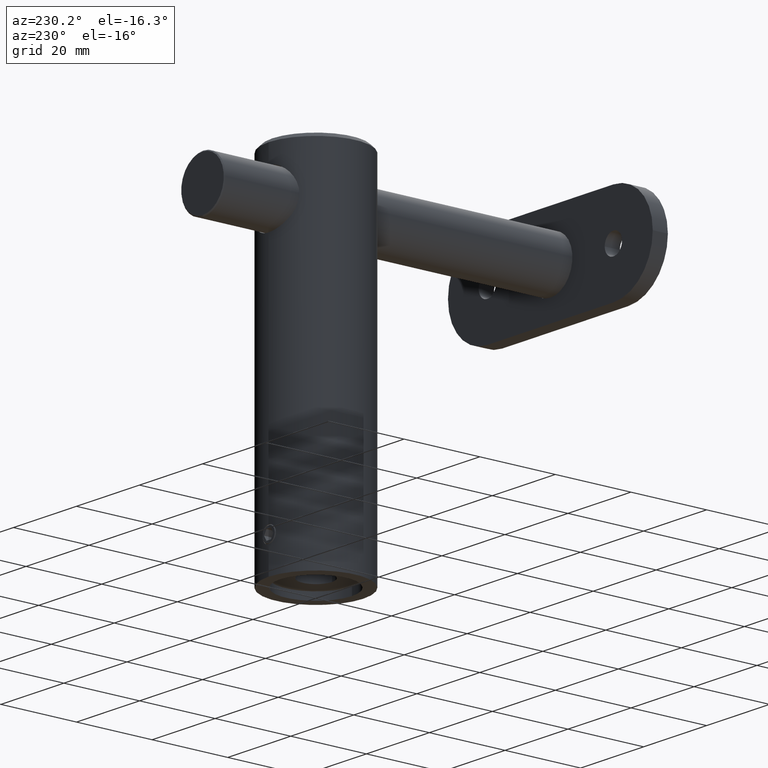
[diagram: clean part render]
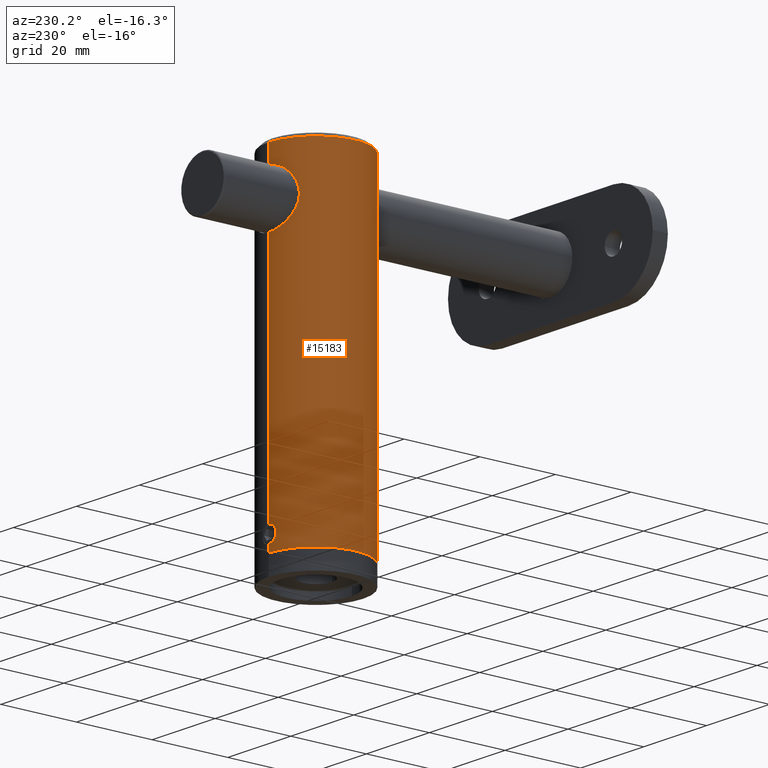
[diagram: same view with one face highlighted and labeled with its STEP entity id]
A machine part, auxiliary view. The second image highlights one B-rep face of the part: STEP entity #15183.
In plain terms, the highlighted cylindrical surface (partial cylindrical patch) has radius 12.5 mm, axis along (0, 0, -1).
Its self-contained STEP definition (entity closure, byte-faithful):
#156 = VERTEX_POINT ( 'NONE', #1703 ) ;
#200 = VERTEX_POINT ( 'NONE', #9526 ) ;
#537 = CARTESIAN_POINT ( 'NONE',  ( -1.059040836926604667, 12.45762628977003494, 5.833907784815527187 ) ) ;
#578 = VECTOR ( 'NONE', #13512, 1000.000000000000000 ) ;
#688 = CARTESIAN_POINT ( 'NONE',  ( -9.798441303750187635E-23, 12.50000000000000355, 1.900000000000005684 ) ) ;
#769 = CARTESIAN_POINT ( 'NONE',  ( -6.357972462635662403, 10.76299649604914954, 78.16845701976458827 ) ) ;
#837 = CARTESIAN_POINT ( 'NONE',  ( -0.9511822130778539996, 12.47241159761730600, 67.94825715557604440 ) ) ;
#904 = CARTESIAN_POINT ( 'NONE',  ( -2.327268730588588852, 12.28355408712934960, 81.71186112651896849 ) ) ;
#967 = CARTESIAN_POINT ( 'NONE',  ( -6.853982002503376414, 10.45369377733144312, 76.86763025503729807 ) ) ;
#983 = EDGE_CURVE ( 'NONE', #18032, #200, #6784, .T. ) ;
#984 = CARTESIAN_POINT ( 'NONE',  ( 1.530808498934191324E-15, -12.49999999999999289, -1.372557338457839692E-15 ) ) ;
#1231 = EDGE_CURVE ( 'NONE', #19417, #17419, #19315, .T. ) ;
#1251 = CARTESIAN_POINT ( 'NONE',  ( -0.4809610958689493065, -12.50000000000000711, 67.89999999999999147 ) ) ;
#1319 = CARTESIAN_POINT ( 'NONE',  ( -6.454712516760552354, -10.70503448327142237, 72.03349485711554223 ) ) ;
#1455 = CARTESIAN_POINT ( 'NONE',  ( -6.136548808116675247, -10.89076193942645965, 71.42150636865642355 ) ) ;
#1703 = CARTESIAN_POINT ( 'NONE',  ( 6.970107993329720685E-17, 12.50000000000000355, 6.099999999999998757 ) ) ;
#1759 = CARTESIAN_POINT ( 'NONE',  ( -0.2743003893079644095, 12.50000000000000355, 1.900000000000005462 ) ) ;
#1875 = CARTESIAN_POINT ( 'NONE',  ( -1.580836478937785561, 12.40001885819545357, 2.610867943919020107 ) ) ;
#2175 = CARTESIAN_POINT ( 'NONE',  ( -1.582460249035301691, 12.39980942031197131, 5.387258285073711406 ) ) ;
#2298 = CARTESIAN_POINT ( 'NONE',  ( -0.1389824923851663285, 12.50000000000000355, 6.099999999999999645 ) ) ;
#2394 = CARTESIAN_POINT ( 'NONE',  ( -4.699254457469035806, 11.58459427111668205, 80.32723125532280051 ) ) ;
#2435 = VERTEX_POINT ( 'NONE', #688 ) ;
#2531 = B_SPLINE_CURVE_WITH_KNOTS ( 'NONE', 3,
 ( #12267, #1759, #3297, #14010, #4831, #6165, #18457, #1875, #5408, #15035, #12304, #12375, #17577, #13012, #17641, #3772, #5317, #16034, #5261, #15966, #19192, #17378, #2175, #6757, #537, #11528, #3637, #3701, #2298, #14486 ),
 .UNSPECIFIED., .F., .F.,
 ( 4, 2, 2, 2, 2, 2, 2, 2, 2, 2, 2, 2, 2, 2, 4 ),
 ( 0.006577226265834324424, 0.007399174158320379058, 0.007810148104563405941, 0.008221122050806432824, 0.008632095997049459707, 0.009043069943292486590, 0.009454043889535513473, 0.009865017835778542091, 0.01027599178202156897, 0.01068696572826459586, 0.01109793967450762274, 0.01150891362075065136, 0.01233086151323670512, 0.01274183545947973201, 0.01315280940572275889 ),
 .UNSPECIFIED. ) ;
#2594 = CARTESIAN_POINT ( 'NONE',  ( -1.189197617727922651, 12.44547036346077462, 82.00366006475732661 ) ) ;
#2670 = CARTESIAN_POINT ( 'NONE',  ( -2.330508779459667501, -12.28868335539655376, 81.72272208563961726 ) ) ;
#2703 = DIRECTION ( 'NONE',  ( 0.000000000000000000, 1.000000000000000000, 0.000000000000000000 ) ) ;
#2867 = CARTESIAN_POINT ( 'NONE',  ( -6.016811922509472055, -10.95760019053422774, 71.22370518382081173 ) ) ;
#3297 = CARTESIAN_POINT ( 'NONE',  ( -0.5510555997337233114, 12.49041604070636780, 1.955202883481008902 ) ) ;
#3637 = CARTESIAN_POINT ( 'NONE',  ( -0.5474908082748963789, 12.48874150837816899, 6.032087653072125022 ) ) ;
#3701 = CARTESIAN_POINT ( 'NONE',  ( -0.2762664775608889012, 12.49768328457756006, 6.086337280568454133 ) ) ;
#3772 = CARTESIAN_POINT ( 'NONE',  ( -2.100083223394554111, 12.32232325748718615, 4.137471484870282268 ) ) ;
#3785 = CARTESIAN_POINT ( 'NONE',  ( 0.000000000000000000, 2.723909758835963716E-15, 0.000000000000000000 ) ) ;
#3926 = CARTESIAN_POINT ( 'NONE',  ( -5.628902018887846026, 11.16205403663977691, 70.66670042335572077 ) ) ;
#3997 = CARTESIAN_POINT ( 'NONE',  ( -0.9553685758214900403, 12.46569958972207814, 82.03946455910859470 ) ) ;
#4015 = CARTESIAN_POINT ( 'NONE',  ( -4.708029709747248326, -11.58475042720365344, 80.33381269667304991 ) ) ;
#4120 = CARTESIAN_POINT ( 'NONE',  ( -7.099833554373474520, 10.28797178943786861, 74.75572396004346842 ) ) ;
#4137 = CARTESIAN_POINT ( 'NONE',  ( -6.722015453373487937, -10.54080125387374345, 77.33161824979872279 ) ) ;
#4334 = CARTESIAN_POINT ( 'NONE',  ( -3.186329035902472295, -12.09508519001900240, 68.63805128578243853 ) ) ;
#4484 = CARTESIAN_POINT ( 'NONE',  ( 1.530808498934021719E-15, -12.50000000000000711, 67.90000000000000568 ) ) ;
#4539 = CARTESIAN_POINT ( 'NONE',  ( -6.634052515645173287, -10.59483006856256537, 72.45976110248518864 ) ) ;
#4653 = ORIENTED_EDGE ( 'NONE', *, *, #10328, .F. ) ;
#4831 = CARTESIAN_POINT ( 'NONE',  ( -1.052645575539821632, 12.45612933409647205, 2.177666326171957323 ) ) ;
#5048 = CARTESIAN_POINT ( 'NONE',  ( 0.000000000000000000, -6.829089316830601455E-15, 87.00000000000000000 ) ) ;
#5134 = DIRECTION ( 'NONE',  ( 0.000000000000000000, 1.000000000000000000, 1.098045870766272064E-16 ) ) ;
#5261 = CARTESIAN_POINT ( 'NONE',  ( -1.992762697854684184, 12.34024839959371889, 4.676597208822471430 ) ) ;
#5317 = CARTESIAN_POINT ( 'NONE',  ( -2.086551808546025732, 12.32465138950227512, 4.274013215971939061 ) ) ;
#5328 = ORIENTED_EDGE ( 'NONE', *, *, #19910, .T. ) ;
#5408 = CARTESIAN_POINT ( 'NONE',  ( -1.669446844424485432, 12.38825472392713323, 2.718715876743982740 ) ) ;
#5478 = CARTESIAN_POINT ( 'NONE',  ( -5.637531711305973303, 11.16027666235574323, 79.34016184945231487 ) ) ;
#5534 = CARTESIAN_POINT ( 'NONE',  ( -0.2397798003476031004, 12.50000000000000000, 82.10000000000002274 ) ) ;
#5601 = CARTESIAN_POINT ( 'NONE',  ( -6.019886174600849849, 10.95590503741819077, 78.77136084374127734 ) ) ;
#5622 = CARTESIAN_POINT ( 'NONE',  ( -3.592029824636711055, -11.97955674781281488, 81.14166018535316027 ) ) ;
#5813 = CARTESIAN_POINT ( 'NONE',  ( -4.703273353215213781, -11.58671775153815986, 69.66188594729268857 ) ) ;
#5888 = CARTESIAN_POINT ( 'NONE',  ( 1.530808498934191719E-15, -12.50000000000000178, 24.80688495222045375 ) ) ;
#5997 = CARTESIAN_POINT ( 'NONE',  ( -6.355184909898128787, -10.76464359171548146, 71.82596901323131533 ) ) ;
#6165 = CARTESIAN_POINT ( 'NONE',  ( -1.281603546142740635, 12.43465773738692626, 2.330732173380938743 ) ) ;
#6179 = EDGE_CURVE ( 'NONE', #2435, #11020, #11755, .T. ) ;
#6467 = DIRECTION ( 'NONE',  ( -0.000000000000000000, 1.098045870766271941E-16, -1.000000000000000000 ) ) ;
#6757 = CARTESIAN_POINT ( 'NONE',  ( -1.292831960822521831, 12.43448438498407604, 5.677274419469252820 ) ) ;
#6784 = LINE ( 'NONE', #15652, #16177 ) ;
#6894 = CARTESIAN_POINT ( 'NONE',  ( 1.479114197289397135E-28, 12.49999999999999645, 67.90000000000000568 ) ) ;
#6903 = EDGE_CURVE ( 'NONE', #17419, #11020, #19789, .T. ) ;
#6911 = CARTESIAN_POINT ( 'NONE',  ( -5.339170464550233142, 11.30350596078846870, 70.31435362947014767 ) ) ;
#6965 = CARTESIAN_POINT ( 'NONE',  ( 1.479114197289397135E-28, 12.49999999999999645, 67.90000000000000568 ) ) ;
#6971 = B_SPLINE_CURVE_WITH_KNOTS ( 'NONE', 3,
 ( #6965, #16056, #837, #16113, #7034, #11557, #17738, #9949, #17801, #8602, #6911, #3926, #10082, #16313, #17603, #10150, #14770, #8537, #19158, #11493, #4120, #8663, #14641, #19420, #967, #8463, #16181, #13041, #769, #14704, #5601, #5478, #13178, #19219, #2394, #7108, #17872, #19281, #11695, #13243, #904, #11628, #10219, #2594, #3997, #11756, #5534, #7170 ),
 .UNSPECIFIED., .F., .F.,
 ( 4, 2, 2, 2, 2, 2, 2, 2, 2, 2, 2, 2, 2, 2, 2, 2, 2, 2, 2, 2, 2, 2, 2, 4 ),
 ( 0.02270891682282252799, 0.02412525192292018852, 0.02554158702301784559, 0.02695792212311550612, 0.02837425722321316318, 0.02908242477326199171, 0.02979059232331082024, 0.03120692742340847731, 0.03262326252350612743, 0.03333143007355495596, 0.03403959762360378449, 0.03545593272370139992, 0.03616410027375020764, 0.03687226782379901535, 0.03758043537384781613, 0.03828860292389662384, 0.03970493802399420458, 0.04041310557404299841, 0.04112127312409179225, 0.04253760822418940074, 0.04324577577423820152, 0.04395394332428700923, 0.04466211087433581695, 0.04537027842438461772 ),
 .UNSPECIFIED. ) ;
#7034 = CARTESIAN_POINT ( 'NONE',  ( -2.330455522349846653, 12.28868556496928122, 68.27727600612421099 ) ) ;
#7054 = CARTESIAN_POINT ( 'NONE',  ( -6.364631587517303402, -10.76036465851576907, 78.18015725607450861 ) ) ;
#7108 = CARTESIAN_POINT ( 'NONE',  ( -4.346392963122591269, 11.72154789661119878, 80.61883026206068337 ) ) ;
#7170 = CARTESIAN_POINT ( 'NONE',  ( 1.310074275435993587E-16, 12.49999999999999467, 82.09999999999999432 ) ) ;
#7186 = CARTESIAN_POINT ( 'NONE',  ( -1.874052461373487910, -12.36744064349519334, 81.86437246242218180 ) ) ;
#7418 = DIRECTION ( 'NONE',  ( -0.000000000000000000, 1.098045870766271941E-16, -1.000000000000000000 ) ) ;
#7449 = CARTESIAN_POINT ( 'NONE',  ( -6.852873825890776871, -10.45442333798883183, 73.12823189057863260 ) ) ;
#7527 = EDGE_LOOP ( 'NONE', ( #4653, #5328, #16091, #18151, #19409, #11256, #12189, #18387, #18889, #19254 ) ) ;
#7895 = DIRECTION ( 'NONE',  ( 0.000000000000000000, -1.000000000000000000, 0.000000000000000000 ) ) ;
#8463 = CARTESIAN_POINT ( 'NONE',  ( -6.715641276056542708, 10.54309940824726688, 77.31630617827102014 ) ) ;
#8537 = CARTESIAN_POINT ( 'NONE',  ( -7.003725121456042757, 10.35379304955138124, 73.81127548781321934 ) ) ;
#8602 = CARTESIAN_POINT ( 'NONE',  ( -5.186797260141185362, 11.37442896416548521, 70.14630031359379814 ) ) ;
#8616 = CARTESIAN_POINT ( 'NONE',  ( -7.051303418075907992, -10.32191336193628217, 75.95439068768591540 ) ) ;
#8663 = CARTESIAN_POINT ( 'NONE',  ( -7.100327846217661332, 10.28763066194222553, 75.47389198161975798 ) ) ;
#8736 = CARTESIAN_POINT ( 'NONE',  ( 0.000000000000000000, 12.50000000000000000, 1.372557338457839692E-15 ) ) ;
#8754 = CARTESIAN_POINT ( 'NONE',  ( -6.148078400945676592, -10.88734605281070422, 78.58038588945871084 ) ) ;
#9526 = CARTESIAN_POINT ( 'NONE',  ( 1.310074275435993587E-16, 12.49999999999999467, 82.09999999999999432 ) ) ;
#9737 = CARTESIAN_POINT ( 'NONE',  ( 0.000000000000000000, 12.49999999999999467, 87.00000000000000000 ) ) ;
#9893 = EDGE_CURVE ( 'NONE', #11556, #19417, #11911, .T. ) ;
#9949 = CARTESIAN_POINT ( 'NONE',  ( -4.357488413051599174, 11.72285358696203161, 69.37543835206956544 ) ) ;
#10006 = AXIS2_PLACEMENT_3D ( 'NONE', #11886, #7418, #2703 ) ;
#10082 = CARTESIAN_POINT ( 'NONE',  ( -5.765905370694645704, 11.09166530797232397, 70.85077256676534319 ) ) ;
#10150 = CARTESIAN_POINT ( 'NONE',  ( -6.721338987096790341, 10.54124068422388660, 72.66633231102328239 ) ) ;
#10219 = CARTESIAN_POINT ( 'NONE',  ( -1.650620416519912759, 12.39271462522872191, 81.90947881661521990 ) ) ;
#10235 = CARTESIAN_POINT ( 'NONE',  ( -4.356324323330959203, -11.72326304938613184, 80.62539833997443850 ) ) ;
#10305 = CARTESIAN_POINT ( 'NONE',  ( -6.911509236011332824, -10.41557569167955855, 73.35788736678888711 ) ) ;
#10328 = EDGE_CURVE ( 'NONE', #19500, #11556, #16492, .T. ) ;
#10503 = CARTESIAN_POINT ( 'NONE',  ( -0.9511355239451600996, -12.47236506100288445, 67.94834280267892268 ) ) ;
#10631 = CARTESIAN_POINT ( 'NONE',  ( -2.319323625872138361, -12.28506725716603754, 68.28537096905358794 ) ) ;
#10966 = EDGE_CURVE ( 'NONE', #16595, #200, #6971, .T. ) ;
#11020 = VERTEX_POINT ( 'NONE', #8736 ) ;
#11101 = AXIS2_PLACEMENT_3D ( 'NONE', #5048, #12482, #7895 ) ;
#11256 = ORIENTED_EDGE ( 'NONE', *, *, #11439, .F. ) ;
#11279 = VECTOR ( 'NONE', #12247, 1000.000000000000000 ) ;
#11379 = CARTESIAN_POINT ( 'NONE',  ( 0.000000000000000000, 12.50000000000000178, 24.80688495222045375 ) ) ;
#11439 = EDGE_CURVE ( 'NONE', #2435, #156, #2531, .T. ) ;
#11493 = CARTESIAN_POINT ( 'NONE',  ( -7.087426699821466336, 10.29656404782429746, 74.51571112368853278 ) ) ;
#11528 = CARTESIAN_POINT ( 'NONE',  ( -0.6802983101495050366, 12.48211517639016677, 5.991454373963667202 ) ) ;
#11556 = VERTEX_POINT ( 'NONE', #17456 ) ;
#11557 = CARTESIAN_POINT ( 'NONE',  ( -3.187016512190915307, 12.09486426576824591, 68.63847765149670010 ) ) ;
#11628 = CARTESIAN_POINT ( 'NONE',  ( -1.878213508060260439, 12.36018587133492552, 81.85110017035161434 ) ) ;
#11646 = CARTESIAN_POINT ( 'NONE',  ( 1.290313625304569330E-16, -12.50000000000000888, 82.09999999999999432 ) ) ;
#11695 = CARTESIAN_POINT ( 'NONE',  ( -3.195008394635605598, 12.09282248704221097, 81.35766473062257376 ) ) ;
#11755 = LINE ( 'NONE', #15185, #11279 ) ;
#11756 = CARTESIAN_POINT ( 'NONE',  ( -0.4811991486314993738, 12.49299174562365344, 82.08768211575331009 ) ) ;
#11776 = CARTESIAN_POINT ( 'NONE',  ( -5.629205280336354811, -11.16189758074911786, 79.33288889108357012 ) ) ;
#11886 = CARTESIAN_POINT ( 'NONE',  ( 0.000000000000000000, 0.000000000000000000, 24.80688495222045375 ) ) ;
#11911 = B_SPLINE_CURVE_WITH_KNOTS ( 'NONE', 3,
 ( #11646, #18025, #17757, #7186, #2670, #19300, #5622, #10235, #4015, #13195, #14720, #11776, #16271, #8754, #7054, #4137, #17820, #8616, #14855, #19375, #19495, #10305, #7449, #15173, #4539, #1319, #5997, #1455, #2867, #16724, #12043, #5813, #16535, #19891, #4334, #13592, #10631, #18085, #19689, #10503, #1251, #11986 ),
 .UNSPECIFIED., .F., .F.,
 ( 4, 2, 2, 2, 2, 2, 2, 2, 2, 2, 2, 2, 2, 2, 2, 2, 2, 2, 2, 2, 4 ),
 ( 1.250545881557408011E-19, 0.001419307301426417974, 0.002838614602852835515, 0.004257921904279252621, 0.005677229205705669295, 0.006386882856418878499, 0.007096536507132086835, 0.008515843808558505243, 0.009935151109984921916, 0.01135445841141133859, 0.01277376571283775873, 0.01348341936355096707, 0.01419307301426417714, 0.01490272666497738548, 0.01561238031569059381, 0.01703168761711697926, 0.01845099491854336471, 0.01987030221996975016, 0.02057995587068294288, 0.02128960952139613561, 0.02270891682282252105 ),
 .UNSPECIFIED. ) ;
#11986 = CARTESIAN_POINT ( 'NONE',  ( 1.530808498934021719E-15, -12.50000000000000711, 67.90000000000000568 ) ) ;
#12043 = CARTESIAN_POINT ( 'NONE',  ( -5.345048310374298950, -11.30501070537479791, 70.30460859623606495 ) ) ;
#12189 = ORIENTED_EDGE ( 'NONE', *, *, #6179, .T. ) ;
#12247 = DIRECTION ( 'NONE',  ( -0.000000000000000000, 1.098045870766271941E-16, -1.000000000000000000 ) ) ;
#12267 = CARTESIAN_POINT ( 'NONE',  ( -9.798441303750187635E-23, 12.50000000000000355, 1.900000000000005684 ) ) ;
#12290 = EDGE_CURVE ( 'NONE', #16595, #156, #15244, .T. ) ;
#12304 = CARTESIAN_POINT ( 'NONE',  ( -1.886269248244665464, 12.35697594623955275, 3.066738918888293419 ) ) ;
#12375 = CARTESIAN_POINT ( 'NONE',  ( -1.992047017919825969, 12.34036526571288306, 3.321224189597172138 ) ) ;
#12482 = DIRECTION ( 'NONE',  ( -0.000000000000000000, 1.098045870766268366E-16, -1.000000000000000000 ) ) ;
#13012 = CARTESIAN_POINT ( 'NONE',  ( -2.086126021674024500, 12.32472383621020029, 3.722835077555702643 ) ) ;
#13041 = CARTESIAN_POINT ( 'NONE',  ( -6.457309689604062264, 10.70346527864367481, 77.96083301754556771 ) ) ;
#13135 = VECTOR ( 'NONE', #14925, 1000.000000000000000 ) ;
#13178 = CARTESIAN_POINT ( 'NONE',  ( -5.350137245759822413, 11.30260226496380405, 79.68962492468297398 ) ) ;
#13195 = CARTESIAN_POINT ( 'NONE',  ( -5.187679897919512229, -11.37402628047062514, 79.85275722496859885 ) ) ;
#13243 = CARTESIAN_POINT ( 'NONE',  ( -2.549971958430652386, 12.23912789366316645, 81.63039500168852669 ) ) ;
#13353 = VECTOR ( 'NONE', #16126, 1000.000000000000000 ) ;
#13512 = DIRECTION ( 'NONE',  ( -0.000000000000000000, 1.098045870766271941E-16, -1.000000000000000000 ) ) ;
#13592 = CARTESIAN_POINT ( 'NONE',  ( -2.542285523396217606, -12.24072011514205194, 68.36667086906035706 ) ) ;
#13706 = CARTESIAN_POINT ( 'NONE',  ( 1.530808498934191719E-15, -12.50000000000000178, 24.80688495222045375 ) ) ;
#13726 = CARTESIAN_POINT ( 'NONE',  ( 1.530808498934192507E-15, -12.50000000000000888, 87.00000000000000000 ) ) ;
#14010 = CARTESIAN_POINT ( 'NONE',  ( -0.9302022205380907627, 12.46598422166855258, 2.112292869818887642 ) ) ;
#14486 = CARTESIAN_POINT ( 'NONE',  ( 6.970107993329720685E-17, 12.50000000000000355, 6.099999999999998757 ) ) ;
#14641 = CARTESIAN_POINT ( 'NONE',  ( -7.052734923715453519, 10.32092856185195195, 75.94404489671643432 ) ) ;
#14704 = CARTESIAN_POINT ( 'NONE',  ( -6.139503581357961259, 10.88909560909868901, 78.57343385222416998 ) ) ;
#14720 = CARTESIAN_POINT ( 'NONE',  ( -5.339918604441927563, -11.30314907400740942, 79.68477827955356929 ) ) ;
#14770 = CARTESIAN_POINT ( 'NONE',  ( -6.862816372559787936, 10.44818337300496047, 73.12045813888649093 ) ) ;
#14855 = CARTESIAN_POINT ( 'NONE',  ( -7.099863319915299620, -10.28795124725936816, 75.48272081303903747 ) ) ;
#14925 = DIRECTION ( 'NONE',  ( -0.000000000000000000, 1.098045870766271941E-16, -1.000000000000000000 ) ) ;
#15035 = CARTESIAN_POINT ( 'NONE',  ( -1.821665953450997799, 12.36678782163336798, 2.946304159207088880 ) ) ;
#15173 = CARTESIAN_POINT ( 'NONE',  ( -6.713868405384194382, -10.54423150536104181, 72.67849907081439653 ) ) ;
#15182 = AXIS2_PLACEMENT_3D ( 'NONE', #3785, #19144, #5134 ) ;
#15183 = ADVANCED_FACE ( 'NONE', ( #17178 ), #18152, .T. ) ;
#15185 = CARTESIAN_POINT ( 'NONE',  ( 0.000000000000000000, 12.50000000000000178, 24.80688495222045375 ) ) ;
#15244 = LINE ( 'NONE', #11379, #13353 ) ;
#15652 = CARTESIAN_POINT ( 'NONE',  ( 0.000000000000000000, 12.50000000000000178, 24.80688495222045375 ) ) ;
#15966 = CARTESIAN_POINT ( 'NONE',  ( -1.887587319264244057, 12.35677335900393103, 4.930538051398362320 ) ) ;
#16034 = CARTESIAN_POINT ( 'NONE',  ( -2.033241785620697240, 12.33355821179407208, 4.542871562600156565 ) ) ;
#16056 = CARTESIAN_POINT ( 'NONE',  ( -0.4799539051028682834, 12.49999999999999822, 67.90000000000000568 ) ) ;
#16091 = ORIENTED_EDGE ( 'NONE', *, *, #983, .T. ) ;
#16113 = CARTESIAN_POINT ( 'NONE',  ( -1.874312031601152784, 12.36740688548126954, 68.13568800573901285 ) ) ;
#16126 = DIRECTION ( 'NONE',  ( -0.000000000000000000, 1.098045870766271941E-16, -1.000000000000000000 ) ) ;
#16177 = VECTOR ( 'NONE', #6467, 1000.000000000000000 ) ;
#16181 = CARTESIAN_POINT ( 'NONE',  ( -6.636142668883750595, 10.59351820108907916, 77.53475660832805261 ) ) ;
#16271 = CARTESIAN_POINT ( 'NONE',  ( -5.766588826831744896, -11.09131400361185094, 79.14830821994482335 ) ) ;
#16313 = CARTESIAN_POINT ( 'NONE',  ( -6.146595381488635823, 10.88816703618159565, 71.41721095202193226 ) ) ;
#16492 = LINE ( 'NONE', #5888, #13135 ) ;
#16535 = CARTESIAN_POINT ( 'NONE',  ( -4.346314444032338464, -11.72684879340800812, 69.36723664936094735 ) ) ;
#16595 = VERTEX_POINT ( 'NONE', #6894 ) ;
#16724 = CARTESIAN_POINT ( 'NONE',  ( -5.633085906007541332, -11.16254692090160461, 70.65396086375709217 ) ) ;
#17178 = FACE_OUTER_BOUND ( 'NONE', #7527, .T. ) ;
#17378 = CARTESIAN_POINT ( 'NONE',  ( -1.670798748957219582, 12.38807301078725409, 5.279564379130151863 ) ) ;
#17419 = VERTEX_POINT ( 'NONE', #984 ) ;
#17456 = CARTESIAN_POINT ( 'NONE',  ( 1.290313625304569330E-16, -12.50000000000000888, 82.09999999999999432 ) ) ;
#17577 = CARTESIAN_POINT ( 'NONE',  ( -2.032484663200844199, 12.33368337160504602, 3.454336856300159297 ) ) ;
#17603 = CARTESIAN_POINT ( 'NONE',  ( -6.363243337331820904, 10.76119357562656376, 71.81699247692640142 ) ) ;
#17641 = CARTESIAN_POINT ( 'NONE',  ( -2.099916014006710352, 12.32235175367555513, 3.859997541257774945 ) ) ;
#17738 = CARTESIAN_POINT ( 'NONE',  ( -3.591928364928691053, 11.97960984808971929, 68.85822097251376306 ) ) ;
#17757 = CARTESIAN_POINT ( 'NONE',  ( -0.9512168273055808809, -12.47240342699864257, 82.05172804908774253 ) ) ;
#17801 = CARTESIAN_POINT ( 'NONE',  ( -4.707102817139632300, 11.58512768093194367, 69.66537265374722665 ) ) ;
#17820 = CARTESIAN_POINT ( 'NONE',  ( -6.863499158220037089, -10.44773442666880925, 76.87726417523569467 ) ) ;
#17872 = CARTESIAN_POINT ( 'NONE',  ( -4.163804789402314910, 11.78780696279484275, 80.75540257205885553 ) ) ;
#18025 = CARTESIAN_POINT ( 'NONE',  ( -0.4805659640073332572, -12.50000000000001066, 82.09999999999999432 ) ) ;
#18032 = VERTEX_POINT ( 'NONE', #9737 ) ;
#18085 = CARTESIAN_POINT ( 'NONE',  ( -1.869096526884923559, -12.36157828789707835, 68.14638903365944600 ) ) ;
#18151 = ORIENTED_EDGE ( 'NONE', *, *, #10966, .F. ) ;
#18152 = CYLINDRICAL_SURFACE ( 'NONE', #10006, 12.50000000000000178 ) ;
#18387 = ORIENTED_EDGE ( 'NONE', *, *, #6903, .F. ) ;
#18457 = CARTESIAN_POINT ( 'NONE',  ( -1.387160506701220042, 12.42317581721323627, 2.417433233313488916 ) ) ;
#18795 = CIRCLE ( 'NONE', #11101, 12.50000000000000178 ) ;
#18889 = ORIENTED_EDGE ( 'NONE', *, *, #1231, .F. ) ;
#19144 = DIRECTION ( 'NONE',  ( -0.000000000000000000, 1.098045870766271941E-16, -1.000000000000000000 ) ) ;
#19158 = CARTESIAN_POINT ( 'NONE',  ( -7.039363743819929020, 10.32948239257338408, 74.04422229401671984 ) ) ;
#19192 = CARTESIAN_POINT ( 'NONE',  ( -1.823189292361671265, 12.36656387944243640, 5.051110966584160700 ) ) ;
#19219 = CARTESIAN_POINT ( 'NONE',  ( -4.868944799639089993, 11.51408151635097887, 80.17252493070223807 ) ) ;
#19254 = ORIENTED_EDGE ( 'NONE', *, *, #9893, .F. ) ;
#19281 = CARTESIAN_POINT ( 'NONE',  ( -3.597349250370595719, 11.97780161950913325, 81.13814261268854011 ) ) ;
#19300 = CARTESIAN_POINT ( 'NONE',  ( -3.187496164584713743, -12.09474588327909572, 81.36129952231799223 ) ) ;
#19315 = LINE ( 'NONE', #13706, #578 ) ;
#19375 = CARTESIAN_POINT ( 'NONE',  ( -7.100136108486188924, -10.28776298659892596, 74.52130825598261765 ) ) ;
#19409 = ORIENTED_EDGE ( 'NONE', *, *, #12290, .T. ) ;
#19417 = VERTEX_POINT ( 'NONE', #4484 ) ;
#19420 = CARTESIAN_POINT ( 'NONE',  ( -6.912668111617620070, 10.41480574227798783, 76.63725143042475452 ) ) ;
#19495 = CARTESIAN_POINT ( 'NONE',  ( -7.051980222211305716, -10.32144769786894756, 74.05050001367733614 ) ) ;
#19500 = VERTEX_POINT ( 'NONE', #13726 ) ;
#19689 = CARTESIAN_POINT ( 'NONE',  ( -1.641484044854728097, -12.39391654726005321, 68.08836762162168554 ) ) ;
#19789 = CIRCLE ( 'NONE', #15182, 12.49999999999999645 ) ;
#19891 = CARTESIAN_POINT ( 'NONE',  ( -3.589032839019618670, -11.98032867455220796, 68.85692947369597050 ) ) ;
#19910 = EDGE_CURVE ( 'NONE', #19500, #18032, #18795, .T. ) ;